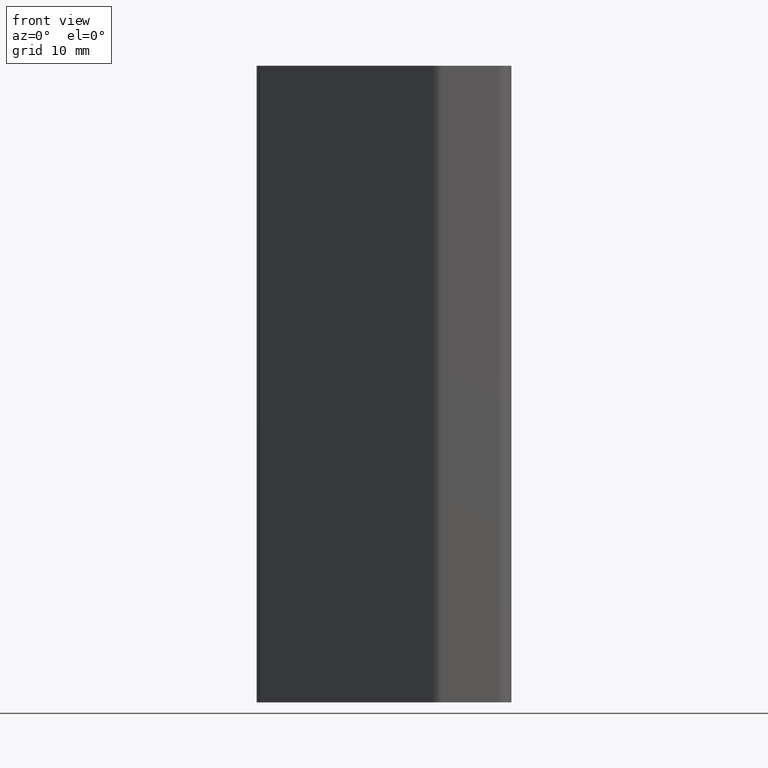
[diagram: clean part render]
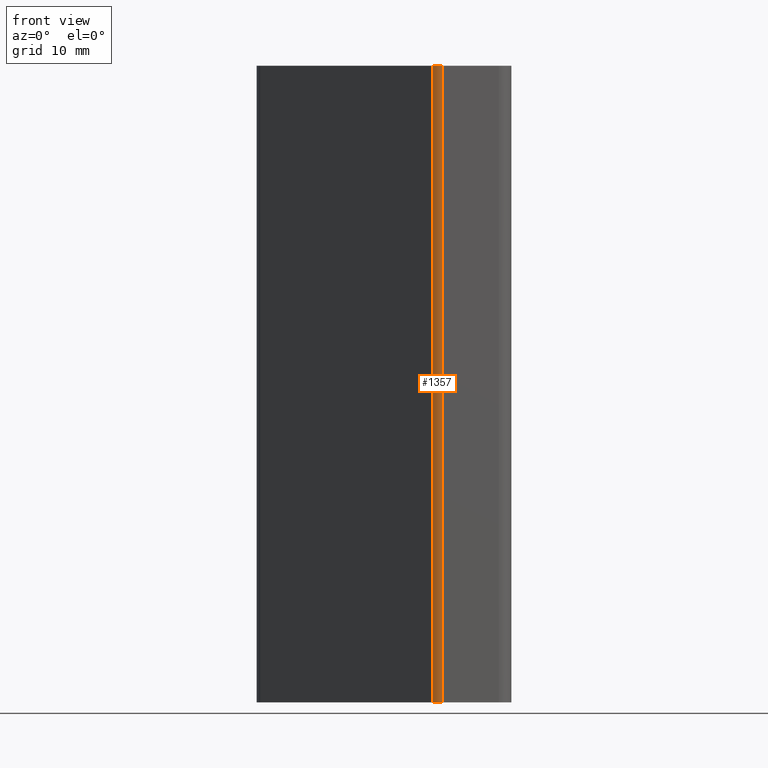
[diagram: same view with one face highlighted and labeled with its STEP entity id]
A machine part, front view. The second image highlights one B-rep face of the part: STEP entity #1357.
In plain terms, the highlighted cylindrical surface (edge-blend (fillet) strip) has radius 2 mm, axis along (0, 0, 1).
Its self-contained STEP definition (entity closure, byte-faithful):
#80=CIRCLE('',#1487,2.);
#81=CIRCLE('',#1488,2.);
#119=CYLINDRICAL_SURFACE('',#1486,2.);
#179=FACE_OUTER_BOUND('',#249,.T.);
#249=EDGE_LOOP('',(#1085,#1086,#1087,#1088));
#377=LINE('',#2259,#509);
#378=LINE('',#2262,#510);
#509=VECTOR('',#1850,100.);
#510=VECTOR('',#1853,100.);
#647=VERTEX_POINT('',#2255);
#648=VERTEX_POINT('',#2256);
#649=VERTEX_POINT('',#2258);
#650=VERTEX_POINT('',#2260);
#833=EDGE_CURVE('',#647,#648,#80,.T.);
#834=EDGE_CURVE('',#649,#647,#377,.T.);
#835=EDGE_CURVE('',#650,#649,#81,.T.);
#836=EDGE_CURVE('',#648,#650,#378,.T.);
#1085=ORIENTED_EDGE('',*,*,#833,.F.);
#1086=ORIENTED_EDGE('',*,*,#834,.F.);
#1087=ORIENTED_EDGE('',*,*,#835,.F.);
#1088=ORIENTED_EDGE('',*,*,#836,.F.);
#1357=ADVANCED_FACE('',(#179),#119,.T.);
#1486=AXIS2_PLACEMENT_3D('',#2254,#1846,#1847);
#1487=AXIS2_PLACEMENT_3D('',#2257,#1848,#1849);
#1488=AXIS2_PLACEMENT_3D('',#2261,#1851,#1852);
#1846=DIRECTION('center_axis',(0.,0.,1.));
#1847=DIRECTION('ref_axis',(0.707106830999893,0.707106731373199,0.));
#1848=DIRECTION('center_axis',(0.,0.,1.));
#1849=DIRECTION('ref_axis',(0.707106830999893,0.707106731373199,0.));
#1850=DIRECTION('',(0.,0.,1.));
#1851=DIRECTION('center_axis',(0.,0.,-1.));
#1852=DIRECTION('ref_axis',(0.707106830999893,0.707106731373199,0.));
#1853=DIRECTION('',(0.,0.,-1.));
#2254=CARTESIAN_POINT('Origin',(9.11272179619846,-18.,0.));
#2255=CARTESIAN_POINT('',(7.69850813419867,-19.4142134627464,100.));
#2256=CARTESIAN_POINT('',(9.11272179619846,-20.,100.));
#2257=CARTESIAN_POINT('Origin',(9.11272179619846,-18.,100.));
#2258=CARTESIAN_POINT('',(7.69850813419867,-19.4142134627464,0.));
#2259=CARTESIAN_POINT('',(7.69850813419867,-19.4142134627464,0.));
#2260=CARTESIAN_POINT('',(9.11272179619846,-20.,0.));
#2261=CARTESIAN_POINT('Origin',(9.11272179619846,-18.,0.));
#2262=CARTESIAN_POINT('',(9.11272179619846,-20.,0.));